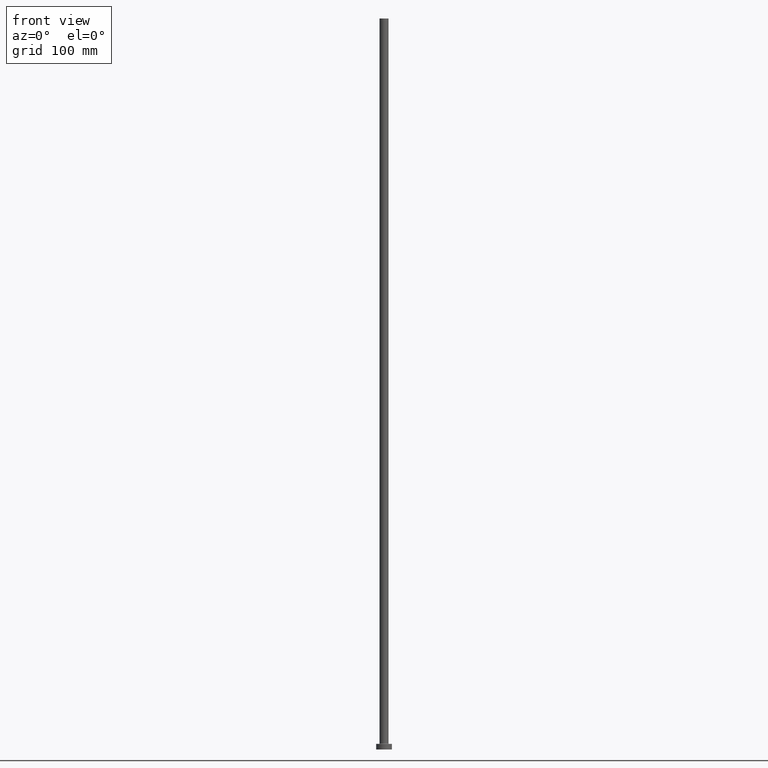
[diagram: clean part render]
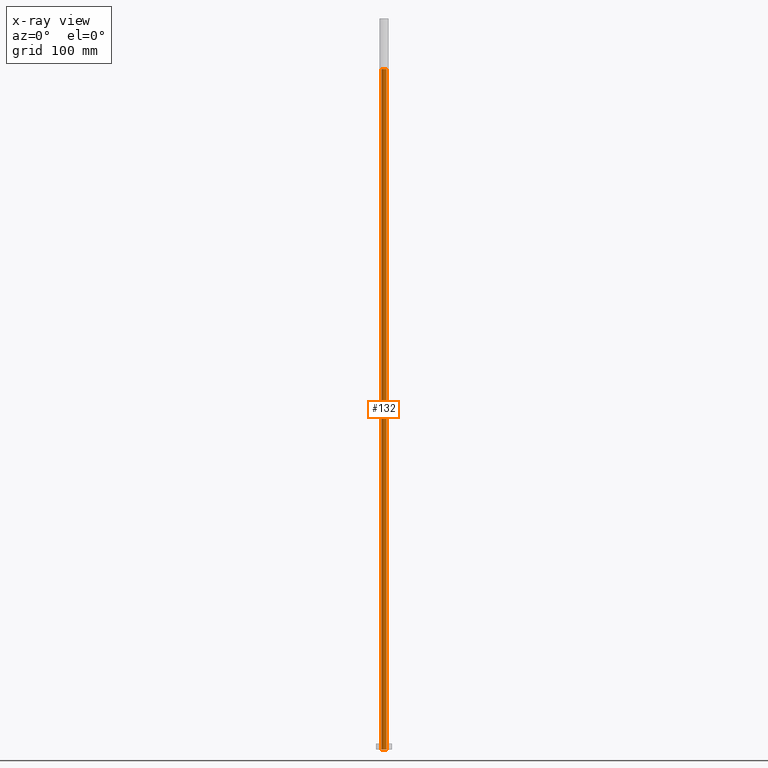
[diagram: x-ray — body ghosted, one internal face saturated and labeled with its STEP entity id]
A machine part, front view, then the same camera in x-ray: the body is ghosted and one INTERNAL B-rep face — a face not visible from any outside direction — is saturated and labeled: STEP entity #132.
In plain terms, the highlighted cylindrical surface (edge-blend (fillet) strip) has radius 2.25 mm, axis along (0, 0, -1).
Its self-contained STEP definition (entity closure, byte-faithful):
#51 = VERTEX_POINT ( 'NONE', #306 ) ;
#55 = CARTESIAN_POINT ( 'NONE',  ( -2.250000000000000000, 0.000000000000000000, 0.000000000000000000 ) ) ;
#60 = DIRECTION ( 'NONE',  ( 0.000000000000000000, 0.000000000000000000, -1.000000000000000000 ) ) ;
#61 = EDGE_CURVE ( 'NONE', #155, #331, #281, .T. ) ;
#83 = VECTOR ( 'NONE', #172, 1000.000000000000000 ) ;
#106 = AXIS2_PLACEMENT_3D ( 'NONE', #111, #286, #394 ) ;
#111 = CARTESIAN_POINT ( 'NONE',  ( 0.000000000000000000, 0.000000000000000000, 605.0000000000000000 ) ) ;
#124 = LINE ( 'NONE', #226, #327 ) ;
#132 = ADVANCED_FACE ( 'NONE', ( #342 ), #304, .F. ) ;
#136 = CIRCLE ( 'NONE', #106, 2.250000000000000000 ) ;
#149 = CARTESIAN_POINT ( 'NONE',  ( 0.000000000000000000, 0.000000000000000000, 0.000000000000000000 ) ) ;
#155 = VERTEX_POINT ( 'NONE', #253 ) ;
#162 = AXIS2_PLACEMENT_3D ( 'NONE', #149, #272, #221 ) ;
#171 = DIRECTION ( 'NONE',  ( -1.000000000000000000, 0.000000000000000000, 0.000000000000000000 ) ) ;
#172 = DIRECTION ( 'NONE',  ( 0.000000000000000000, 0.000000000000000000, -1.000000000000000000 ) ) ;
#221 = DIRECTION ( 'NONE',  ( 1.000000000000000000, 0.000000000000000000, 0.000000000000000000 ) ) ;
#226 = CARTESIAN_POINT ( 'NONE',  ( 2.250000000000000000, 2.755455298081544285E-16, 611.3639610306788654 ) ) ;
#253 = CARTESIAN_POINT ( 'NONE',  ( -2.250000000000000000, 0.000000000000000000, 605.0000000000000000 ) ) ;
#255 = EDGE_CURVE ( 'NONE', #155, #51, #136, .T. ) ;
#272 = DIRECTION ( 'NONE',  ( -0.000000000000000000, -0.000000000000000000, -1.000000000000000000 ) ) ;
#275 = CARTESIAN_POINT ( 'NONE',  ( 0.000000000000000000, 0.000000000000000000, 611.3639610306788654 ) ) ;
#281 = LINE ( 'NONE', #311, #83 ) ;
#286 = DIRECTION ( 'NONE',  ( 0.000000000000000000, 0.000000000000000000, 1.000000000000000000 ) ) ;
#304 = CYLINDRICAL_SURFACE ( 'NONE', #355, 2.250000000000000000 ) ;
#306 = CARTESIAN_POINT ( 'NONE',  ( 2.250000000000000000, 2.755455298081544285E-16, 605.0000000000000000 ) ) ;
#311 = CARTESIAN_POINT ( 'NONE',  ( -2.250000000000000000, 0.000000000000000000, 611.3639610306788654 ) ) ;
#327 = VECTOR ( 'NONE', #60, 1000.000000000000000 ) ;
#330 = EDGE_LOOP ( 'NONE', ( #343, #407, #423, #385 ) ) ;
#331 = VERTEX_POINT ( 'NONE', #55 ) ;
#342 = FACE_OUTER_BOUND ( 'NONE', #330, .T. ) ;
#343 = ORIENTED_EDGE ( 'NONE', *, *, #255, .T. ) ;
#355 = AXIS2_PLACEMENT_3D ( 'NONE', #275, #414, #171 ) ;
#372 = EDGE_CURVE ( 'NONE', #412, #331, #428, .T. ) ;
#374 = CARTESIAN_POINT ( 'NONE',  ( 2.250000000000000000, 2.755455298081544285E-16, 0.000000000000000000 ) ) ;
#385 = ORIENTED_EDGE ( 'NONE', *, *, #61, .F. ) ;
#394 = DIRECTION ( 'NONE',  ( 1.000000000000000000, 0.000000000000000000, 0.000000000000000000 ) ) ;
#407 = ORIENTED_EDGE ( 'NONE', *, *, #427, .T. ) ;
#412 = VERTEX_POINT ( 'NONE', #374 ) ;
#414 = DIRECTION ( 'NONE',  ( 0.000000000000000000, 0.000000000000000000, -1.000000000000000000 ) ) ;
#423 = ORIENTED_EDGE ( 'NONE', *, *, #372, .T. ) ;
#427 = EDGE_CURVE ( 'NONE', #51, #412, #124, .T. ) ;
#428 = CIRCLE ( 'NONE', #162, 2.250000000000000000 ) ;